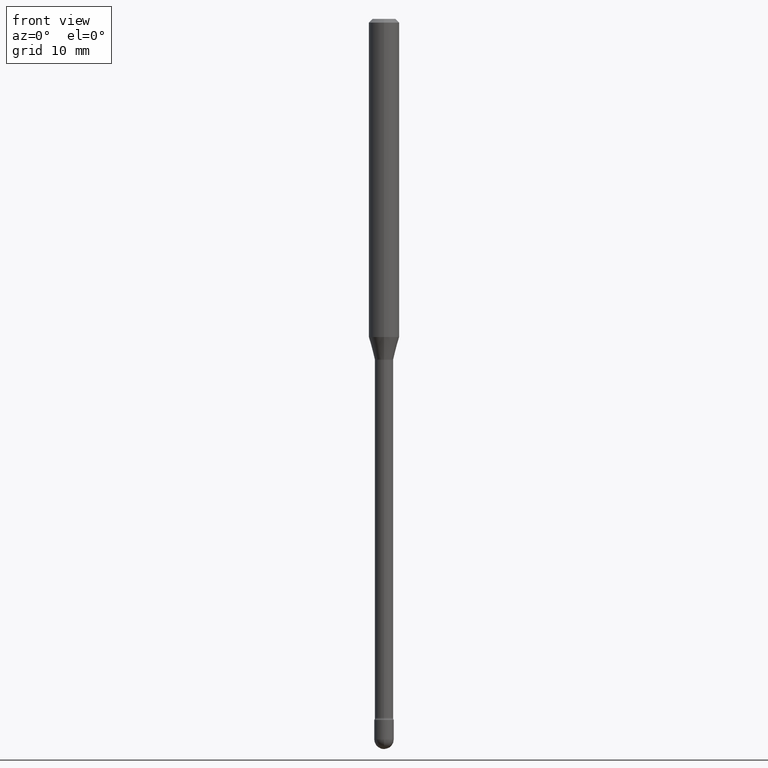
[diagram: clean part render]
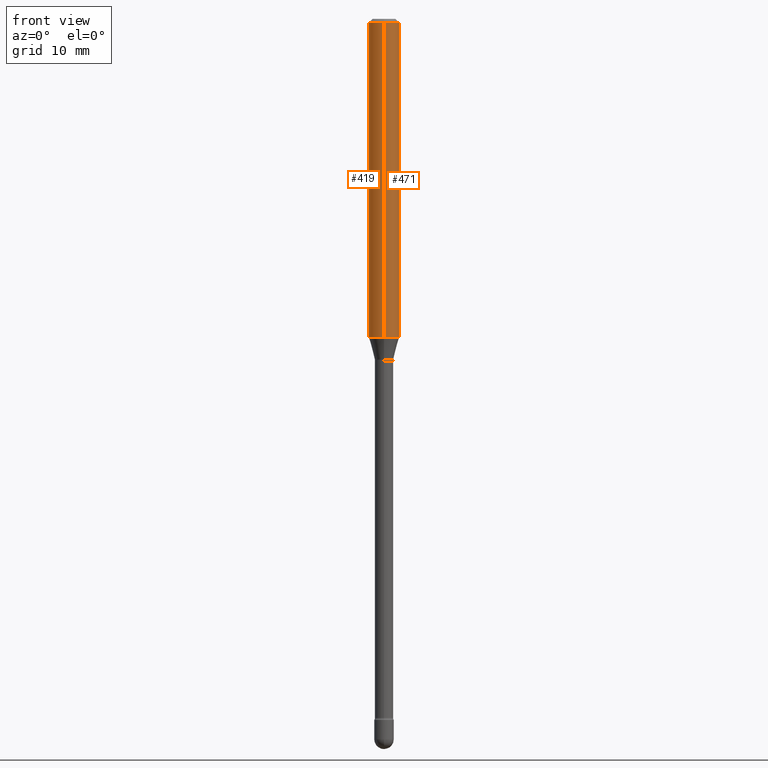
[diagram: same view with one multi-face feature highlighted, each face labeled with its STEP entity id]
A machine part, front view. The highlighted faces form ONE feature: a constant-radius fillet chain: 2 tangent blend faces with common blend radius 1.5875 mm. The faces share edges in the B-rep.
Their STEP definitions:
[1] entity #419 (Cylinder):
#3 = CARTESIAN_POINT ( 'NONE',  ( -1.169113584055446105E-44, 1.669184350826100908E-30, 4.780733988912460139E-16 ) ) ;
#15 = ORIENTED_EDGE ( 'NONE', *, *, #549, .F. ) ;
#17 = CARTESIAN_POINT ( 'NONE',  ( 3.196391155914031550E-29, -4.563635153160466520E-15, -1.307071934891535170 ) ) ;
#78 = CARTESIAN_POINT ( 'NONE',  ( 3.668188877660312984E-31, -5.237242531956586600E-17, -0.01500000000000008271 ) ) ;
#80 = CARTESIAN_POINT ( 'NONE',  ( -4.364351673553912750E-16, -0.06250000000000005551, -0.01499999999999986587 ) ) ;
#85 = CARTESIAN_POINT ( 'NONE',  ( 4.440892098500946636E-16, 0.06249999999999993755, -0.01500000000000030129 ) ) ;
#106 = VERTEX_POINT ( 'NONE', #355 ) ;
#119 = VERTEX_POINT ( 'NONE', #80 ) ;
#126 = CARTESIAN_POINT ( 'NONE',  ( -4.364351673553916201E-16, -0.06250000000000000000, 6.962918377227692754E-16 ) ) ;
#154 = VECTOR ( 'NONE', #395, 39.37007874015748143 ) ;
#158 = FACE_OUTER_BOUND ( 'NONE', #237, .T. ) ;
#161 = DIRECTION ( 'NONE',  ( -6.982962677686265922E-15, -1.000000000000000000, 3.483106191921935554E-15 ) ) ;
#165 = VECTOR ( 'NONE', #560, 39.37007874015748143 ) ;
#175 = EDGE_CURVE ( 'NONE', #367, #106, #501, .T. ) ;
#188 = DIRECTION ( 'NONE',  ( -6.982962677686265922E-15, -1.000000000000000000, 4.370956789862821150E-15 ) ) ;
#206 = DIRECTION ( 'NONE',  ( -2.445459251773528513E-29, 3.491495021304371789E-15, 1.000000000000000000 ) ) ;
#237 = EDGE_LOOP ( 'NONE', ( #248, #497, #278, #15 ) ) ;
#238 = AXIS2_PLACEMENT_3D ( 'NONE', #3, #387, #431 ) ;
#248 = ORIENTED_EDGE ( 'NONE', *, *, #380, .F. ) ;
#263 = CYLINDRICAL_SURFACE ( 'NONE', #238, 0.06250000000000000000 ) ;
#275 = AXIS2_PLACEMENT_3D ( 'NONE', #17, #358, #188 ) ;
#278 = ORIENTED_EDGE ( 'NONE', *, *, #498, .T. ) ;
#306 = AXIS2_PLACEMENT_3D ( 'NONE', #78, #206, #161 ) ;
#315 = CIRCLE ( 'NONE', #306, 0.06250000000000000000 ) ;
#355 = CARTESIAN_POINT ( 'NONE',  ( -4.364351673553599671E-16, -0.06250000000000460743, -1.307071934891534726 ) ) ;
#358 = DIRECTION ( 'NONE',  ( -2.445459251773528513E-29, 3.491495021304371789E-15, 1.000000000000000000 ) ) ;
#367 = VERTEX_POINT ( 'NONE', #472 ) ;
#380 = EDGE_CURVE ( 'NONE', #367, #455, #555, .T. ) ;
#387 = DIRECTION ( 'NONE',  ( -2.445459251773528513E-29, 3.491495021304371789E-15, 1.000000000000000000 ) ) ;
#391 = CARTESIAN_POINT ( 'NONE',  ( 4.440892098500625669E-16, 0.06250000000000000000, 2.598549600597228511E-16 ) ) ;
#395 = DIRECTION ( 'NONE',  ( -2.445459251773528513E-29, 3.491495021304371789E-15, 1.000000000000000000 ) ) ;
#419 = ADVANCED_FACE ( 'NONE', ( #158 ), #263, .T. ) ;
#431 = DIRECTION ( 'NONE',  ( -6.982962677686265922E-15, -1.000000000000000000, 3.491495021304372183E-15 ) ) ;
#455 = VERTEX_POINT ( 'NONE', #85 ) ;
#472 = CARTESIAN_POINT ( 'NONE',  ( 4.440892098500941706E-16, 0.06249999999999539951, -1.307071934891535392 ) ) ;
#497 = ORIENTED_EDGE ( 'NONE', *, *, #175, .T. ) ;
#498 = EDGE_CURVE ( 'NONE', #106, #119, #563, .T. ) ;
#501 = CIRCLE ( 'NONE', #275, 0.06250000000000000000 ) ;
#549 = EDGE_CURVE ( 'NONE', #455, #119, #315, .T. ) ;
#555 = LINE ( 'NONE', #391, #165 ) ;
#560 = DIRECTION ( 'NONE',  ( -2.445459251773528513E-29, 3.491495021304371789E-15, 1.000000000000000000 ) ) ;
#563 = LINE ( 'NONE', #126, #154 ) ;
[2] entity #471 (Cylinder):
#4 = CARTESIAN_POINT ( 'NONE',  ( 3.196391155914031550E-29, -4.563635153160466520E-15, -1.307071934891535170 ) ) ;
#25 = ORIENTED_EDGE ( 'NONE', *, *, #380, .T. ) ;
#67 = CIRCLE ( 'NONE', #454, 0.06250000000000000000 ) ;
#80 = CARTESIAN_POINT ( 'NONE',  ( -4.364351673553912750E-16, -0.06250000000000005551, -0.01499999999999986587 ) ) ;
#85 = CARTESIAN_POINT ( 'NONE',  ( 4.440892098500946636E-16, 0.06249999999999993755, -0.01500000000000030129 ) ) ;
#86 = EDGE_CURVE ( 'NONE', #106, #367, #92, .T. ) ;
#92 = CIRCLE ( 'NONE', #413, 0.06250000000000000000 ) ;
#106 = VERTEX_POINT ( 'NONE', #355 ) ;
#114 = EDGE_CURVE ( 'NONE', #119, #455, #67, .T. ) ;
#119 = VERTEX_POINT ( 'NONE', #80 ) ;
#126 = CARTESIAN_POINT ( 'NONE',  ( -4.364351673553916201E-16, -0.06250000000000000000, 6.962918377227692754E-16 ) ) ;
#143 = ORIENTED_EDGE ( 'NONE', *, *, #86, .T. ) ;
#154 = VECTOR ( 'NONE', #395, 39.37007874015748143 ) ;
#165 = VECTOR ( 'NONE', #560, 39.37007874015748143 ) ;
#209 = CARTESIAN_POINT ( 'NONE',  ( -1.169113584055446105E-44, 1.669184350826100908E-30, 4.780733988912460139E-16 ) ) ;
#261 = CYLINDRICAL_SURFACE ( 'NONE', #408, 0.06250000000000000000 ) ;
#294 = ORIENTED_EDGE ( 'NONE', *, *, #114, .F. ) ;
#311 = DIRECTION ( 'NONE',  ( -2.445459251773528513E-29, 3.491495021304371789E-15, 1.000000000000000000 ) ) ;
#316 = DIRECTION ( 'NONE',  ( -2.445459251773528513E-29, 3.491495021304371789E-15, 1.000000000000000000 ) ) ;
#322 = ORIENTED_EDGE ( 'NONE', *, *, #498, .F. ) ;
#355 = CARTESIAN_POINT ( 'NONE',  ( -4.364351673553599671E-16, -0.06250000000000460743, -1.307071934891534726 ) ) ;
#367 = VERTEX_POINT ( 'NONE', #472 ) ;
#380 = EDGE_CURVE ( 'NONE', #367, #455, #555, .T. ) ;
#386 = EDGE_LOOP ( 'NONE', ( #143, #25, #294, #322 ) ) ;
#391 = CARTESIAN_POINT ( 'NONE',  ( 4.440892098500625669E-16, 0.06250000000000000000, 2.598549600597228511E-16 ) ) ;
#395 = DIRECTION ( 'NONE',  ( -2.445459251773528513E-29, 3.491495021304371789E-15, 1.000000000000000000 ) ) ;
#408 = AXIS2_PLACEMENT_3D ( 'NONE', #209, #513, #438 ) ;
#413 = AXIS2_PLACEMENT_3D ( 'NONE', #4, #311, #527 ) ;
#438 = DIRECTION ( 'NONE',  ( -6.982962677686265922E-15, -1.000000000000000000, 3.491495021304372183E-15 ) ) ;
#454 = AXIS2_PLACEMENT_3D ( 'NONE', #530, #316, #518 ) ;
#455 = VERTEX_POINT ( 'NONE', #85 ) ;
#467 = FACE_OUTER_BOUND ( 'NONE', #386, .T. ) ;
#471 = ADVANCED_FACE ( 'NONE', ( #467 ), #261, .T. ) ;
#472 = CARTESIAN_POINT ( 'NONE',  ( 4.440892098500941706E-16, 0.06249999999999539951, -1.307071934891535392 ) ) ;
#498 = EDGE_CURVE ( 'NONE', #106, #119, #563, .T. ) ;
#513 = DIRECTION ( 'NONE',  ( -2.445459251773528513E-29, 3.491495021304371789E-15, 1.000000000000000000 ) ) ;
#518 = DIRECTION ( 'NONE',  ( -6.982962677686265922E-15, -1.000000000000000000, 3.483106191921935554E-15 ) ) ;
#527 = DIRECTION ( 'NONE',  ( -6.982962677686265922E-15, -1.000000000000000000, 4.370956789862821150E-15 ) ) ;
#530 = CARTESIAN_POINT ( 'NONE',  ( 3.668188877660312984E-31, -5.237242531956586600E-17, -0.01500000000000008271 ) ) ;
#555 = LINE ( 'NONE', #391, #165 ) ;
#560 = DIRECTION ( 'NONE',  ( -2.445459251773528513E-29, 3.491495021304371789E-15, 1.000000000000000000 ) ) ;
#563 = LINE ( 'NONE', #126, #154 ) ;